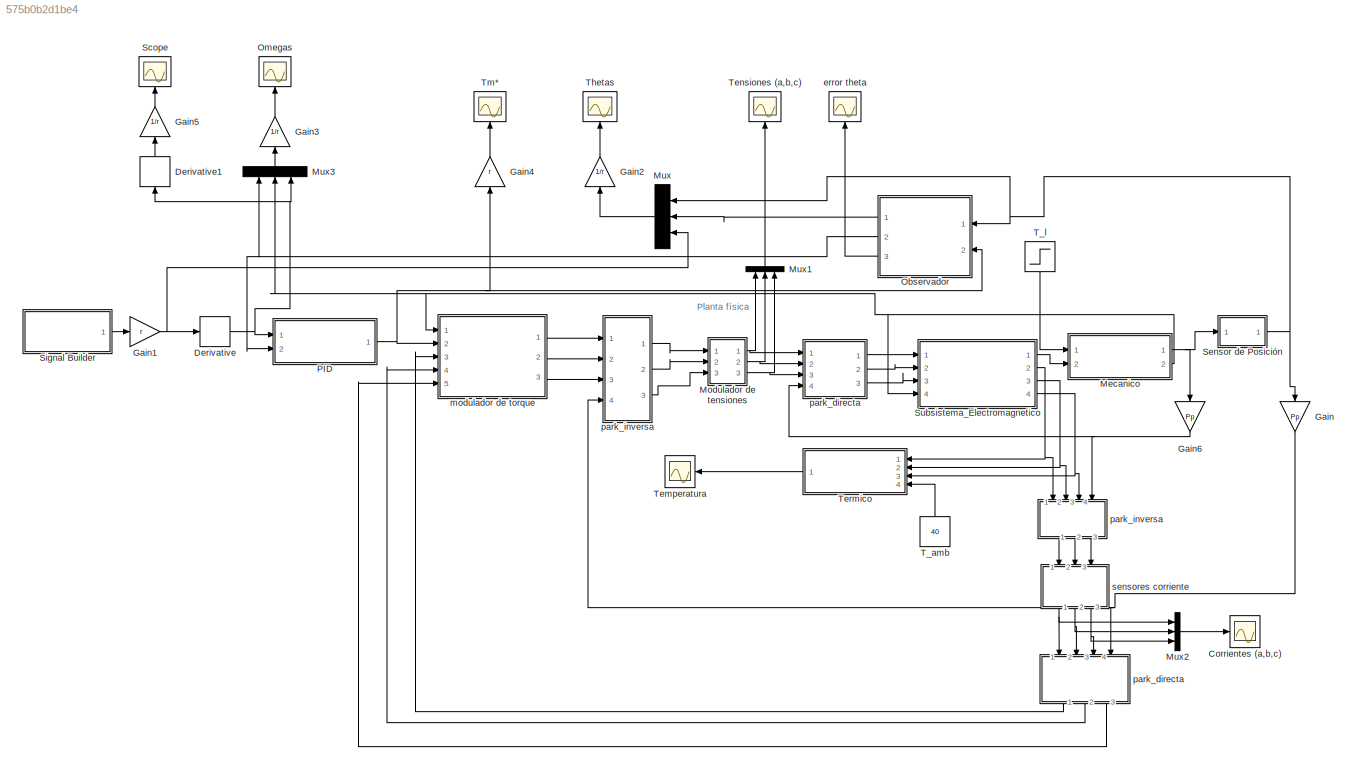
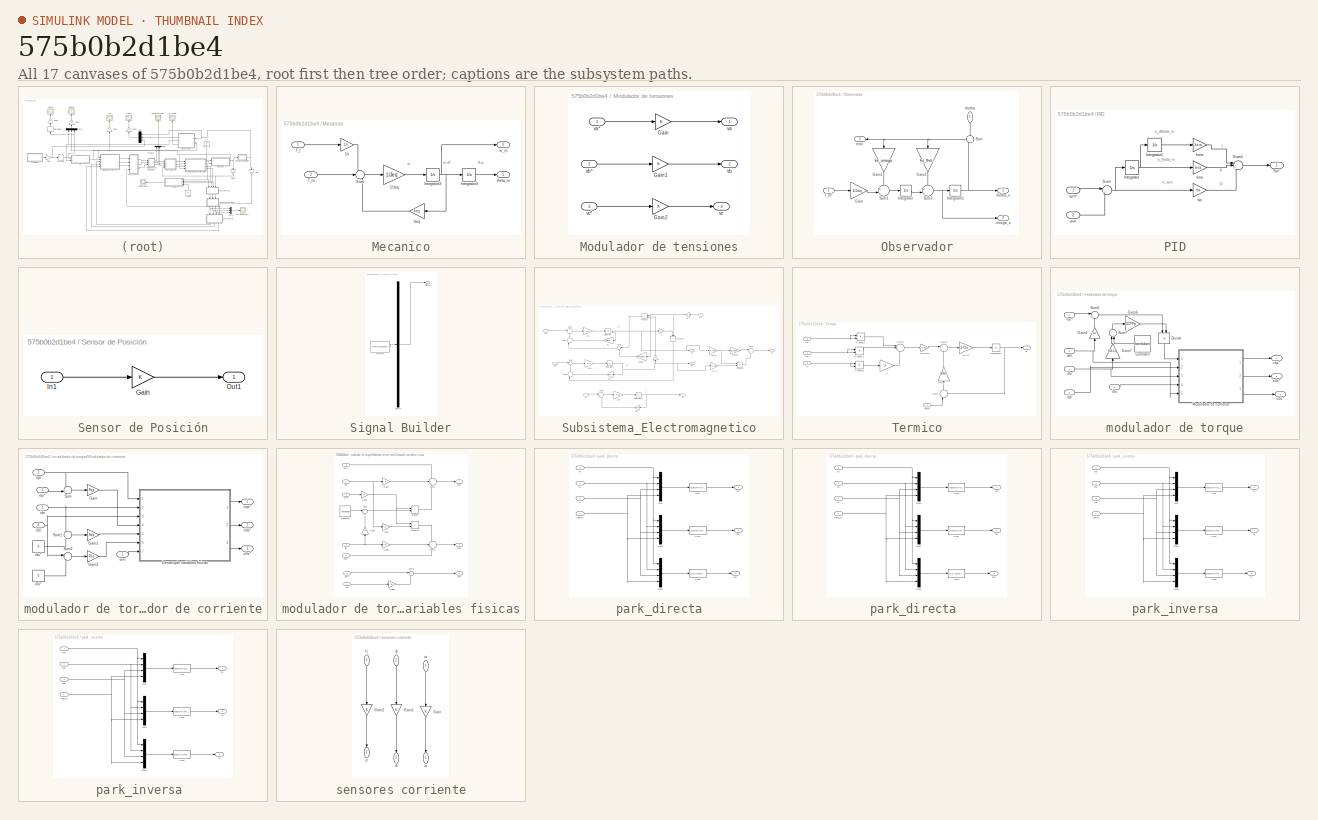
[diagram: thumbnail index - all 17 canvases of the model, root first then tree order]
MODEL slx_575b0b2d1be4
KIND model
CONFIG AbsTol = auto
CONFIG EnableMultiTasking = off
CONFIG FixedStep = auto
CONFIG MaxStep = auto
CONFIG MinStep = auto
CONFIG RelTol = 1e-3
CONFIG SampleTimeConstraint = Unconstrained
CONFIG Solver = VariableStepAuto
CONFIG SolverName = VariableStepAuto
CONFIG StartTime = 0.0
CONFIG StopTime = 20
BLOCK [Scope] Corrientes (a,b,c)
  Floating = off
  NumInputPorts = 1
  Ports = [1]
  ScopeSpecificationString = Simulink.scopes.TimeScopeBlockCfg('CurrentConfiguration', extmgr.ConfigurationSet(extmgr.Configuration('Core','General UI',true),extmgr.Configuration('Core','Source UI',true),extmgr.Configuration('Sources','WiredSimulink',true,'DataLoggingVariableName','ScopeData1','SampleTime','.0001'),extmgr.Configuration('Visuals','Time Domain',true,'SerializedDisplays',{struct('MinYLimReal','-60.46468','MaxYLi...<+1675ch>
BLOCK [Derivative] Derivative
BLOCK [Derivative] Derivative1
  NameLocation = right
BLOCK [Gain] Gain
  Gain = Pp
  NameLocation = left
BLOCK [Gain] Gain1
  Gain = r
BLOCK [Gain] Gain2
  Gain = 1/r
  NameLocation = right
BLOCK [Gain] Gain3
  Gain = 1/r
  NameLocation = right
BLOCK [Gain] Gain4
  Gain = r
  NameLocation = right
BLOCK [Gain] Gain5
  Gain = 1/r
  NameLocation = right
BLOCK [Gain] Gain6
  Gain = Pp
  NameLocation = left
BLOCK [SubSystem] Mecanico
  Ports = [2, 2]
  RequestExecContextInheritance = off
BLOCK [Gain] Mecanico/1//Jeq 
  Gain = 1/Jeq
BLOCK [Gain] Mecanico/1//r 
  Gain = 1/r
BLOCK [Integrator] Mecanico/Integrator2
  Ports = [1, 1]
BLOCK [Integrator] Mecanico/Integrator3
  Ports = [1, 1]
BLOCK [Sum] Mecanico/Sum
  Inputs = -+-
  Ports = [3, 1]
BLOCK [Inport] Mecanico/T_l
BLOCK [Inport] Mecanico/T_m
  Port = 2
BLOCK [Gain] Mecanico/beq 
  Gain = beq
BLOCK [Outport] Mecanico/theta_m
BLOCK [Outport] Mecanico/w_m
  Port = 2
BLOCK [SubSystem] Modulador de tensiones
  Ports = [3, 3]
  RequestExecContextInheritance = off
BLOCK [Gain] Modulador de tensiones/Gain
BLOCK [Gain] Modulador de tensiones/Gain1
BLOCK [Gain] Modulador de tensiones/Gain2
BLOCK [Outport] Modulador de tensiones/va
BLOCK [Inport] Modulador de tensiones/va*
BLOCK [Outport] Modulador de tensiones/vb
  Port = 2
BLOCK [Inport] Modulador de tensiones/vb*
  Port = 2
BLOCK [Outport] Modulador de tensiones/vc
  Port = 3
BLOCK [Inport] Modulador de tensiones/vc*
  Port = 3
BLOCK [Mux] Mux
  DisplayOption = bar
  Inputs = 3
  NameLocation = top
  Ports = [3, 1]
BLOCK [Mux] Mux1
  DisplayOption = bar
  Inputs = 3
  NameLocation = right
  Ports = [3, 1]
BLOCK [Mux] Mux2
  DisplayOption = bar
  Inputs = 3
  Ports = [3, 1]
BLOCK [Mux] Mux3
  DisplayOption = bar
  Inputs = 3
  NameLocation = right
  Ports = [3, 1]
BLOCK [SubSystem] Observador
  NameLocation = top
  Ports = [2, 3]
  RequestExecContextInheritance = off
BLOCK [Gain] Observador/Gain
  Gain = 1/Jeq
BLOCK [Gain] Observador/Gain1
  Gain = ke_omega
  NameLocation = left
BLOCK [Gain] Observador/Gain2
  Gain = ke_thetha
  NameLocation = left
BLOCK [Integrator] Observador/Integrator
  Ports = [1, 1]
BLOCK [Integrator] Observador/Integrator1
  Ports = [1, 1]
BLOCK [Sum] Observador/Sum
  Inputs = +||-
  NameLocation = top
  Ports = [2, 1]
BLOCK [Sum] Observador/Sum1
  Inputs = +|+||
  Ports = [2, 1]
BLOCK [Sum] Observador/Sum2
  Inputs = +|+||
  Ports = [2, 1]
BLOCK [Inport] Observador/T_m*
  Port = 2
BLOCK [Outport] Observador/error
  NameLocation = top
  Port = 3
BLOCK [Outport] Observador/omega_o
  Port = 2
BLOCK [Inport] Observador/thetha
  NameLocation = left
BLOCK [Outport] Observador/thetha_o
BLOCK [Scope] Omegas
  Floating = off
  NameLocation = top
  NumInputPorts = 1
  Ports = [1]
  ScopeSpecificationString = Simulink.scopes.TimeScopeBlockCfg('CurrentConfiguration', extmgr.ConfigurationSet(extmgr.Configuration('Core','General UI',true,'FigureColor',[0.247058823529412 0.247058823529412 0.247058823529412]),extmgr.Configuration('Core','Source UI',true),extmgr.Configuration('Sources','WiredSimulink',true,'DataLoggingVariableName','ScopeData2'),extmgr.Configuration('Visuals','Time Domain',true,'SerializedDi...<+1874ch>
BLOCK [SubSystem] PID
  Ports = [2, 1]
  RequestExecContextInheritance = off
BLOCK [Integrator] PID/Integrator
  Ports = [1, 1]
BLOCK [Integrator] PID/Integrator1
  Ports = [1, 1]
BLOCK [Sum] PID/Sum
  Inputs = |+-
  Ports = [2, 1]
BLOCK [Sum] PID/Sum1
  Inputs = |+++
  Ports = [3, 1]
BLOCK [Outport] PID/Tm*'
BLOCK [Gain] PID/ba
  Gain = ba
BLOCK [Gain] PID/ksa
  Gain = ksa
BLOCK [Gain] PID/ksia
  Gain = ksia
BLOCK [Inport] PID/wm
  Port = 2
BLOCK [Inport] PID/wm*
BLOCK [Scope] Scope
  Floating = off
  NameLocation = right
  NumInputPorts = 1
  Ports = [1]
  ScopeSpecificationString = Simulink.scopes.TimeScopeBlockCfg('CurrentConfiguration', extmgr.ConfigurationSet(extmgr.Configuration('Core','General UI',true),extmgr.Configuration('Core','Source UI',true),extmgr.Configuration('Sources','WiredSimulink',true,'DataLoggingVariableName','ScopeData1'),extmgr.Configuration('Visuals','Time Domain',true,'SerializedDisplays',{struct('MinYLimReal','-30189010158204.25','MaxYLimReal','5228...<+1646ch>
BLOCK [SubSystem] Sensor de Posición
  Ports = [1, 1]
  RequestExecContextInheritance = off
BLOCK [Gain] Sensor de Posición/Gain
BLOCK [Inport] Sensor de Posición/In1
BLOCK [Outport] Sensor de Posición/Out1
BLOCK [SubSystem] Signal Builder
  ClipboardFcn = sigbuilder_block('clipboard');
  CloseFcn = sigbuilder_block('close');
  ContinueFcn = sigbuilder_block('continue');
  CopyFcn = sigbuilder_block('copy');
  DeleteFcn = sigbuilder_block('delete');
  LoadFcn = sigbuilder_block('load');
  MaskHideContents = on
  ModelCloseFcn = sigbuilder_block('modelClose');
  NameChangeFcn = sigbuilder_block('namechange');
  OpenFcn = sigbuilder_block('open',[437.6 199.2 550.4 400 ]);
  PauseFcn = sigbuilder_block('pause');
  Ports = [0, 1]
  PreSaveFcn = sigbuilder_block('preSave');
  RequestExecContextInheritance = off
  StartFcn = sigbuilder_block('start');
  StopFcn = sigbuilder_block('stop');
  Tag = STV Subsys
BLOCK [Demux] Signal Builder/Demux
  DisplayOption = none
  Outputs = 1
  Ports = [1, 1]
  Tag = STV Demux
BLOCK [FromWorkspace] Signal Builder/FromWs
  Tag = STV FromWs
  VariableName = tuvar
BLOCK [Outport] Signal Builder/Signal 1
  Tag = STV Outport
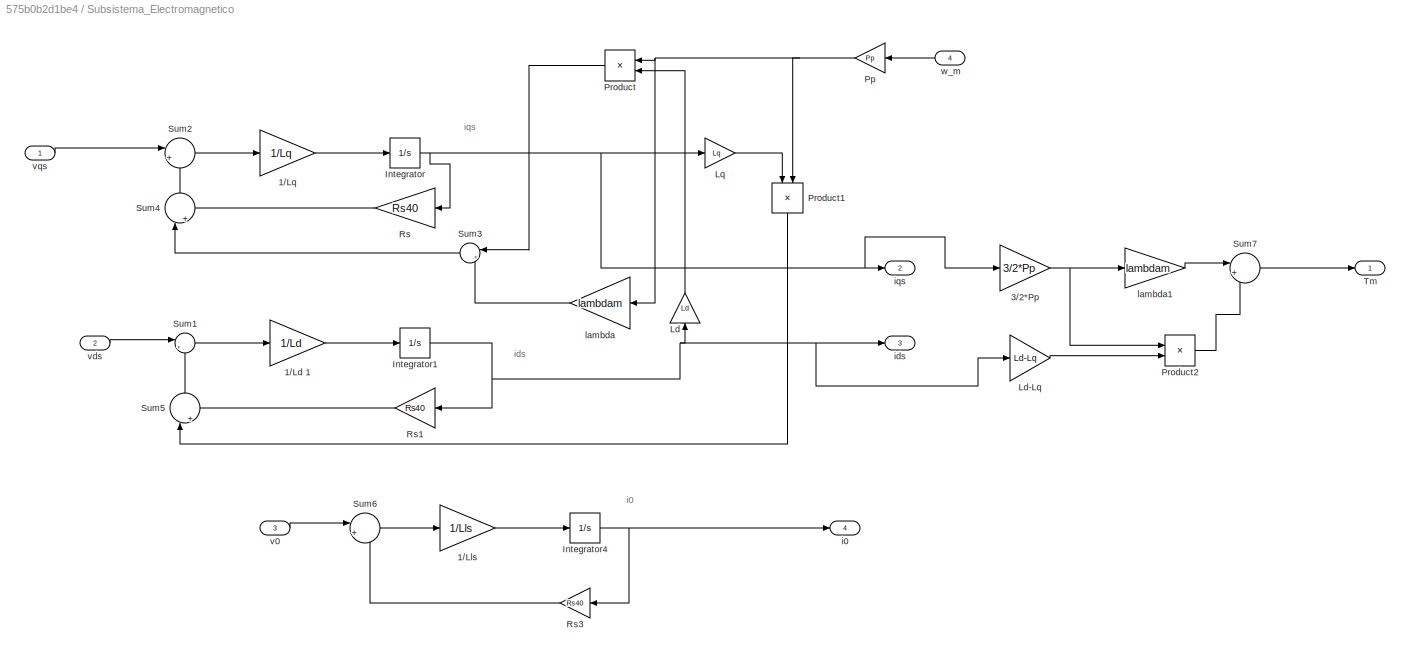
BLOCK [SubSystem] Subsistema_Electromagnetico
  Ports = [4, 4]
  RequestExecContextInheritance = off
BLOCK [Gain] Subsistema_Electromagnetico/1//Ld 1
  Gain = 1/Ld
BLOCK [Gain] Subsistema_Electromagnetico/1//Lls
  Gain = 1/Lls
BLOCK [Gain] Subsistema_Electromagnetico/1//Lq 
  Gain = 1/Lq
BLOCK [Gain] Subsistema_Electromagnetico/3//2*Pp
  Gain = 3/2*Pp
  NameLocation = top
BLOCK [Integrator] Subsistema_Electromagnetico/Integrator
  Ports = [1, 1]
BLOCK [Integrator] Subsistema_Electromagnetico/Integrator1
  Ports = [1, 1]
BLOCK [Integrator] Subsistema_Electromagnetico/Integrator4
  Ports = [1, 1]
BLOCK [Gain] Subsistema_Electromagnetico/Ld
  Gain = Ld
  NameLocation = right
BLOCK [Gain] Subsistema_Electromagnetico/Ld-Lq
  Gain = Ld-Lq
  NameLocation = top
BLOCK [Gain] Subsistema_Electromagnetico/Lq 
  Gain = Lq
BLOCK [Gain] Subsistema_Electromagnetico/Pp
  Gain = Pp
BLOCK [Product] Subsistema_Electromagnetico/Product
  Ports = [2, 1]
BLOCK [Product] Subsistema_Electromagnetico/Product1
  NameLocation = right
  Ports = [2, 1]
BLOCK [Product] Subsistema_Electromagnetico/Product2
  NameLocation = top
  Ports = [2, 1]
BLOCK [Gain] Subsistema_Electromagnetico/Rs
  Gain = Rs40
BLOCK [Gain] Subsistema_Electromagnetico/Rs1
  Gain = Rs40
BLOCK [Gain] Subsistema_Electromagnetico/Rs3
  Gain = Rs40
BLOCK [Sum] Subsistema_Electromagnetico/Sum1
  Inputs = |++
  Ports = [2, 1]
BLOCK [Sum] Subsistema_Electromagnetico/Sum2
  Inputs = |+-
  Ports = [2, 1]
BLOCK [Sum] Subsistema_Electromagnetico/Sum3
  Inputs = |++
  Ports = [2, 1]
BLOCK [Sum] Subsistema_Electromagnetico/Sum4
  Inputs = |++
  NameLocation = left
  Ports = [2, 1]
BLOCK [Sum] Subsistema_Electromagnetico/Sum5
  Inputs = |+-
  NameLocation = left
  Ports = [2, 1]
BLOCK [Sum] Subsistema_Electromagnetico/Sum6
  Inputs = |+-
  Ports = [2, 1]
BLOCK [Sum] Subsistema_Electromagnetico/Sum7
  Inputs = |++
  NameLocation = top
  Ports = [2, 1]
BLOCK [Outport] Subsistema_Electromagnetico/Tm
BLOCK [Outport] Subsistema_Electromagnetico/i0
  Port = 4
BLOCK [Outport] Subsistema_Electromagnetico/ids
  Port = 3
BLOCK [Outport] Subsistema_Electromagnetico/iqs
  Port = 2
BLOCK [Gain] Subsistema_Electromagnetico/lambda
  Gain = lambdam
BLOCK [Gain] Subsistema_Electromagnetico/lambda1
  Gain = lambdam
  NameLocation = top
BLOCK [Inport] Subsistema_Electromagnetico/v0
  Port = 3
BLOCK [Inport] Subsistema_Electromagnetico/vds
  Port = 2
BLOCK [Inport] Subsistema_Electromagnetico/vqs
BLOCK [Inport] Subsistema_Electromagnetico/w_m
  NameLocation = top
  Port = 4
BLOCK [Constant] T_amb
  Value = 40
BLOCK [Step] T_l
  After = 1.57
  NameLocation = left
  SampleTime = 0
BLOCK [Scope] Temperatura
  Floating = off
  NumInputPorts = 1
  Ports = [1]
  ScopeSpecificationString = Simulink.scopes.TimeScopeBlockCfg('CurrentConfiguration', extmgr.ConfigurationSet(extmgr.Configuration('Core','General UI',true),extmgr.Configuration('Core','Source UI',true),extmgr.Configuration('Sources','WiredSimulink',true,'DataLoggingVariableName','ScopeData6'),extmgr.Configuration('Visuals','Time Domain',true,'SerializedDisplays',{struct('MinYLimReal','-4.93535','MaxYLimReal','44.41814','YLa...<+1549ch>
BLOCK [Scope] Tensiones (a,b,c)
  Floating = off
  NameLocation = top
  NumInputPorts = 1
  Ports = [1]
  ScopeSpecificationString = Simulink.scopes.TimeScopeBlockCfg('CurrentConfiguration', extmgr.ConfigurationSet(extmgr.Configuration('Core','General UI',true),extmgr.Configuration('Core','Source UI',true),extmgr.Configuration('Sources','WiredSimulink',true,'DataLoggingVariableName','ScopeData7'),extmgr.Configuration('Visuals','Time Domain',true,'SerializedDisplays',{struct('MinYLimReal','-1940.92588','MaxYLimReal','2283.21513'...<+1668ch>
BLOCK [SubSystem] Termico
  Ports = [4, 1]
  RequestExecContextInheritance = off
BLOCK [Gain] Termico/1//Cts
  Gain = 1/Cts
BLOCK [Gain] Termico/1//Rts
  Gain = 1/Rts
  NameLocation = right
BLOCK [Gain] Termico/2 
  Gain = 2
BLOCK [Gain] Termico/3//2*Rs40 
  Gain = 3/2*Rs40
  NameLocation = top
BLOCK [Integrator] Termico/Integrator5
  Ports = [1, 1]
BLOCK [Product] Termico/Product3
  NameLocation = top
  Ports = [2, 1]
BLOCK [Product] Termico/Product4
  NameLocation = top
  Ports = [2, 1]
BLOCK [Product] Termico/Product5
  NameLocation = top
  Ports = [2, 1]
BLOCK [Sum] Termico/Sum10
  Inputs = |+-
  Ports = [2, 1]
BLOCK [Sum] Termico/Sum11
  Inputs = |+++
  NameLocation = top
  Ports = [3, 1]
BLOCK [Sum] Termico/Sum9
  Inputs = |-+
  NameLocation = right
  Ports = [2, 1]
BLOCK [Inport] Termico/Tamb
  Port = 4
BLOCK [Outport] Termico/Ts
BLOCK [Inport] Termico/i0
  Port = 3
BLOCK [Inport] Termico/ids
  Port = 2
BLOCK [Inport] Termico/iqs
BLOCK [Scope] Thetas
  Floating = off
  NameLocation = top
  NumInputPorts = 1
  Ports = [1]
  ScopeSpecificationString = Simulink.scopes.TimeScopeBlockCfg('CurrentConfiguration', extmgr.ConfigurationSet(extmgr.Configuration('Core','General UI',true),extmgr.Configuration('Core','Source UI',true),extmgr.Configuration('Sources','WiredSimulink',true,'DataLoggingVariableName','ScopeData8'),extmgr.Configuration('Visuals','Time Domain',true,'SerializedDisplays',{struct('MinYLimReal','-0.000003','MaxYLimReal','0.000012','YL...<+1939ch>
BLOCK [Scope] Tm*
  Floating = off
  NameLocation = top
  NumInputPorts = 1
  Ports = [1]
  ScopeSpecificationString = Simulink.scopes.TimeScopeBlockCfg('CurrentConfiguration', extmgr.ConfigurationSet(extmgr.Configuration('Core','General UI',true),extmgr.Configuration('Core','Source UI',true),extmgr.Configuration('Sources','WiredSimulink',true,'DataLoggingVariableName','ScopeData9'),extmgr.Configuration('Visuals','Time Domain',true,'SerializedDisplays',{struct('MinYLimReal','-1752.17219','MaxYLimReal','1755.3122',...<+1559ch>
BLOCK [Scope] error theta
  Floating = off
  NameLocation = top
  NumInputPorts = 1
  Ports = [1]
  ScopeSpecificationString = Simulink.scopes.TimeScopeBlockCfg('CurrentConfiguration', extmgr.ConfigurationSet(extmgr.Configuration('Core','General UI',true),extmgr.Configuration('Core','Source UI',true),extmgr.Configuration('Sources','WiredSimulink',true),extmgr.Configuration('Visuals','Time Domain',true,'SerializedDisplays',{struct('MinYLimReal','-0.01637','MaxYLimReal','0.01621','YLabelReal','rad','MinYLimMag','0.00000','M...<+1621ch>
BLOCK [SubSystem] modulador de torque
  Ports = [5, 3]
  RequestExecContextInheritance = off
BLOCK [Constant] modulador de torque/Constant
  NameLocation = top
  Value = lambdam
BLOCK [Product] modulador de torque/Divide
  Inputs = */
  NameLocation = left
  Ports = [2, 1]
BLOCK [Gain] modulador de torque/Gain4
  Gain = beq
  NameLocation = right
BLOCK [Gain] modulador de torque/Gain6
  Gain = 3/2*Pp
BLOCK [Gain] modulador de torque/Gain7
  Gain = Ld-Lq
  NameLocation = right
BLOCK [SubSystem] modulador de torque/Modulador de corriente
  Ports = [5, 3]
  RequestExecContextInheritance = off
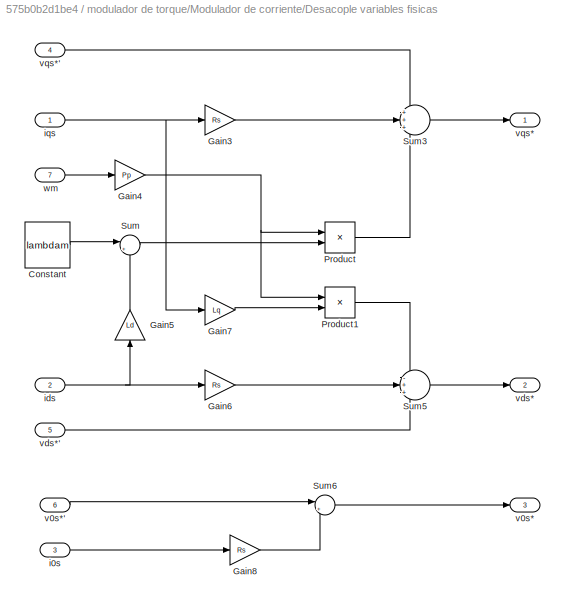
BLOCK [SubSystem] modulador de torque/Modulador de corriente/Desacople variables fisicas
  Ports = [7, 3]
  RequestExecContextInheritance = off
BLOCK [Constant] modulador de torque/Modulador de corriente/Desacople variables fisicas/Constant
  Value = lambdam
BLOCK [Gain] modulador de torque/Modulador de corriente/Desacople variables fisicas/Gain3
  Gain = Rs
BLOCK [Gain] modulador de torque/Modulador de corriente/Desacople variables fisicas/Gain4
  Gain = Pp
BLOCK [Gain] modulador de torque/Modulador de corriente/Desacople variables fisicas/Gain5
  Gain = Ld
  NameLocation = right
BLOCK [Gain] modulador de torque/Modulador de corriente/Desacople variables fisicas/Gain6
  Gain = Rs
BLOCK [Gain] modulador de torque/Modulador de corriente/Desacople variables fisicas/Gain7
  Gain = Lq
BLOCK [Gain] modulador de torque/Modulador de corriente/Desacople variables fisicas/Gain8
  Gain = Rs
BLOCK [Product] modulador de torque/Modulador de corriente/Desacople variables fisicas/Product
  Ports = [2, 1]
BLOCK [Product] modulador de torque/Modulador de corriente/Desacople variables fisicas/Product1
  Ports = [2, 1]
BLOCK [Sum] modulador de torque/Modulador de corriente/Desacople variables fisicas/Sum
  Inputs = |++
  Ports = [2, 1]
BLOCK [Sum] modulador de torque/Modulador de corriente/Desacople variables fisicas/Sum3
  Inputs = +++
  Ports = [3, 1]
BLOCK [Sum] modulador de torque/Modulador de corriente/Desacople variables fisicas/Sum5
  Inputs = -++
  Ports = [3, 1]
BLOCK [Sum] modulador de torque/Modulador de corriente/Desacople variables fisicas/Sum6
  Inputs = |++
  Ports = [2, 1]
BLOCK [Inport] modulador de torque/Modulador de corriente/Desacople variables fisicas/i0s
  Port = 3
BLOCK [Inport] modulador de torque/Modulador de corriente/Desacople variables fisicas/ids
  Port = 2
BLOCK [Inport] modulador de torque/Modulador de corriente/Desacople variables fisicas/iqs
BLOCK [Outport] modulador de torque/Modulador de corriente/Desacople variables fisicas/v0s*
  Port = 3
BLOCK [Inport] modulador de torque/Modulador de corriente/Desacople variables fisicas/v0s*'
  Port = 6
BLOCK [Outport] modulador de torque/Modulador de corriente/Desacople variables fisicas/vds*
  Port = 2
BLOCK [Inport] modulador de torque/Modulador de corriente/Desacople variables fisicas/vds*'
  Port = 5
BLOCK [Outport] modulador de torque/Modulador de corriente/Desacople variables fisicas/vqs*
BLOCK [Inport] modulador de torque/Modulador de corriente/Desacople variables fisicas/vqs*'
  Port = 4
BLOCK [Inport] modulador de torque/Modulador de corriente/Desacople variables fisicas/wm
  Port = 7
BLOCK [Gain] modulador de torque/Modulador de corriente/Gain
  Gain = Rqp
BLOCK [Gain] modulador de torque/Modulador de corriente/Gain1
  Gain = Rdp
BLOCK [Gain] modulador de torque/Modulador de corriente/Gain2
  Gain = R0p
BLOCK [Sum] modulador de torque/Modulador de corriente/Sum
  Inputs = -+|
  Ports = [2, 1]
BLOCK [Sum] modulador de torque/Modulador de corriente/Sum1
  Inputs = -||+
  Ports = [2, 1]
BLOCK [Sum] modulador de torque/Modulador de corriente/Sum2
  Inputs = |-+
  Ports = [2, 1]
BLOCK [Inport] modulador de torque/Modulador de corriente/i0s
  Port = 4
BLOCK [Constant] modulador de torque/Modulador de corriente/i0s*
  Value = 0
BLOCK [Inport] modulador de torque/Modulador de corriente/ids
  Port = 3
BLOCK [Constant] modulador de torque/Modulador de corriente/ids*
  Value = 0
BLOCK [Inport] modulador de torque/Modulador de corriente/iqs
  Port = 2
BLOCK [Inport] modulador de torque/Modulador de corriente/iqs*
BLOCK [Outport] modulador de torque/Modulador de corriente/v0s*
  Port = 3
BLOCK [Outport] modulador de torque/Modulador de corriente/vds*
  Port = 2
BLOCK [Outport] modulador de torque/Modulador de corriente/vqs*
BLOCK [Inport] modulador de torque/Modulador de corriente/wm
  Port = 5
BLOCK [Sum] modulador de torque/Sum6
  Inputs = |++
  Ports = [2, 1]
BLOCK [Sum] modulador de torque/Sum7
  Inputs = |++
  NameLocation = right
  Ports = [2, 1]
BLOCK [Inport] modulador de torque/Tm*'
  Port = 2
BLOCK [Inport] modulador de torque/i0s
  Port = 5
BLOCK [Inport] modulador de torque/ids
  Port = 4
BLOCK [Inport] modulador de torque/iqs
  Port = 3
BLOCK [Outport] modulador de torque/v0s*
  Port = 3
BLOCK [Outport] modulador de torque/vds*
  Port = 2
BLOCK [Outport] modulador de torque/vqs*
BLOCK [Inport] modulador de torque/wm
BLOCK [SubSystem] park_directa
  Ports = [4, 3]
  RequestExecContextInheritance = off
BLOCK [SubSystem] park_directa 
  NameLocation = left
  Ports = [4, 3]
  RequestExecContextInheritance = off
BLOCK [Fcn] park_directa /Fcn3
  Expr = (cos(u(4))*u(1)+cos(u(4)-2*pi/3)*u(2)+cos(u(4)+2*pi/3)*u(3))*2/3
BLOCK [Fcn] park_directa /Fcn4
  Expr = (sin(u(4))*u(1)+sin(u(4)-2*pi/3)*u(2)+sin(u(4)+2*pi/3)*u(3))*2/3
BLOCK [Fcn] park_directa /Fcn5
  Expr = (u(1)/2+u(2)/2+u(3)/2)*2/3
BLOCK [Mux] park_directa /Mux3
  DisplayOption = bar
  Ports = [4, 1]
BLOCK [Mux] park_directa /Mux4
  DisplayOption = bar
  Ports = [4, 1]
BLOCK [Mux] park_directa /Mux5
  DisplayOption = bar
  Ports = [4, 1]
BLOCK [Outport] park_directa /f0s
  Port = 3
BLOCK [Inport] park_directa /fa 
BLOCK [Inport] park_directa /fb 
  Port = 2
BLOCK [Inport] park_directa /fc 
  Port = 3
BLOCK [Outport] park_directa /fds
  Port = 2
BLOCK [Outport] park_directa /fqs
BLOCK [Inport] park_directa /theta_r1
  Port = 4
BLOCK [Fcn] park_directa/Fcn
  Expr = (cos(u(4))*u(1)+cos(u(4)-2*pi/3)*u(2)+cos(u(4)+2*pi/3)*u(3))*2/3
BLOCK [Fcn] park_directa/Fcn1
  Expr = (sin(u(4))*u(1)+sin(u(4)-2*pi/3)*u(2)+sin(u(4)+2*pi/3)*u(3))*2/3
BLOCK [Fcn] park_directa/Fcn2
  Expr = (u(1)/2+u(2)/2+u(3)/2)*2/3
BLOCK [Mux] park_directa/Mux
  DisplayOption = bar
  Ports = [4, 1]
BLOCK [Mux] park_directa/Mux1
  DisplayOption = bar
  Ports = [4, 1]
BLOCK [Mux] park_directa/Mux2
  DisplayOption = bar
  Ports = [4, 1]
BLOCK [Outport] park_directa/f0s
  Port = 3
BLOCK [Inport] park_directa/fa 
BLOCK [Inport] park_directa/fb 
  Port = 2
BLOCK [Inport] park_directa/fc 
  Port = 3
BLOCK [Outport] park_directa/fds
  Port = 2
BLOCK [Outport] park_directa/fqs
BLOCK [Inport] park_directa/theta_r
  Port = 4
BLOCK [SubSystem] park_inversa
  Ports = [4, 3]
  RequestExecContextInheritance = off
BLOCK [SubSystem] park_inversa 
  NameLocation = left
  Ports = [4, 3]
  RequestExecContextInheritance = off
BLOCK [Fcn] park_inversa /Fcn
  Expr = cos(u(4))*u(1)+sin(u(4))*u(2)+u(3)
BLOCK [Fcn] park_inversa /Fcn1
  Expr = cos(u(4)-2*pi/3)*u(1)+sin(u(4)-2*pi/3)*u(2)+u(3)
BLOCK [Fcn] park_inversa /Fcn2
  Expr = cos(u(4)+2*pi/3)*u(1)+sin(u(4)+2*pi/3)*u(2)+u(3)
BLOCK [Mux] park_inversa /Mux
  DisplayOption = bar
  Ports = [4, 1]
BLOCK [Mux] park_inversa /Mux1
  DisplayOption = bar
  Ports = [4, 1]
BLOCK [Mux] park_inversa /Mux2
  DisplayOption = bar
  Ports = [4, 1]
BLOCK [Inport] park_inversa /f0s
  Port = 3
BLOCK [Outport] park_inversa /fa
BLOCK [Outport] park_inversa /fb
  Port = 2
BLOCK [Outport] park_inversa /fc
  Port = 3
BLOCK [Inport] park_inversa /fds
  Port = 2
BLOCK [Inport] park_inversa /fqs
BLOCK [Inport] park_inversa /theta_r
  Port = 4
BLOCK [Fcn] park_inversa/Fcn
  Expr = cos(u(4))*u(1)+sin(u(4))*u(2)+u(3)
BLOCK [Fcn] park_inversa/Fcn1
  Expr = cos(u(4)-2*pi/3)*u(1)+sin(u(4)-2*pi/3)*u(2)+u(3)
BLOCK [Fcn] park_inversa/Fcn2
  Expr = cos(u(4)+2*pi/3)*u(1)+sin(u(4)+2*pi/3)*u(2)+u(3)
BLOCK [Mux] park_inversa/Mux
  DisplayOption = bar
  Ports = [4, 1]
BLOCK [Mux] park_inversa/Mux1
  DisplayOption = bar
  Ports = [4, 1]
BLOCK [Mux] park_inversa/Mux2
  DisplayOption = bar
  Ports = [4, 1]
BLOCK [Inport] park_inversa/f0s
  Port = 3
BLOCK [Outport] park_inversa/fa
BLOCK [Outport] park_inversa/fb
  Port = 2
BLOCK [Outport] park_inversa/fc
  Port = 3
BLOCK [Inport] park_inversa/fds
  Port = 2
BLOCK [Inport] park_inversa/fqs
BLOCK [Inport] park_inversa/theta_r
  Port = 4
BLOCK [SubSystem] sensores corriente
  NameLocation = left
  Ports = [3, 3]
  RequestExecContextInheritance = off
BLOCK [Gain] sensores corriente/Gain
  NameLocation = left
BLOCK [Gain] sensores corriente/Gain1
  NameLocation = left
BLOCK [Gain] sensores corriente/Gain2
  NameLocation = left
BLOCK [Inport] sensores corriente/ia
  NameLocation = left
BLOCK [Outport] sensores corriente/ia 
  NameLocation = left
BLOCK [Inport] sensores corriente/ib
  NameLocation = left
  Port = 2
BLOCK [Outport] sensores corriente/ib 
  NameLocation = left
  Port = 2
BLOCK [Inport] sensores corriente/ic
  NameLocation = left
  Port = 3
BLOCK [Outport] sensores corriente/ic 
  NameLocation = left
  Port = 3
ANNOTATION (root): Planta física
ANNOTATION Mecanico: w'
ANNOTATION Mecanico: w=θ'
ANNOTATION Mecanico: θ=y
ANNOTATION PID: D
ANNOTATION PID: I
ANNOTATION PID: P
ANNOTATION PID: e_dtheta_m
ANNOTATION PID: e_theta_m
ANNOTATION PID: e_wm
ANNOTATION Subsistema_Electromagnetico: i0
ANNOTATION Subsistema_Electromagnetico: ids
ANNOTATION Subsistema_Electromagnetico: iqs
LINE Derivative1:1 -> Gain5:1
NET Derivative:1 -> Derivative1:1, Mux3:3, PID:1
NET Gain1:1 -> Derivative:1, Mux:3
LINE Gain2:1 -> Thetas:1
LINE Gain3:1 -> Omegas:1
LINE Gain4:1 -> Tm*:1
LINE Gain5:1 -> Scope:1
NET Gain6:1 -> park_directa:4, park_inversa :4
NET Gain:1 -> park_directa :4, park_inversa:4
LINE Mecanico/1//Jeq :1 -> Mecanico/Integrator2:1
LINE Mecanico/1//r :1 -> Mecanico/Sum:1
NET Mecanico/Integrator2:1 -> Mecanico/Integrator3:1, Mecanico/beq :1, Mecanico/w_m:1
LINE Mecanico/Integrator3:1 -> Mecanico/theta_m:1
LINE Mecanico/Sum:1 -> Mecanico/1//Jeq :1
LINE Mecanico/T_l:1 -> Mecanico/1//r :1
LINE Mecanico/T_m:1 -> Mecanico/Sum:2
LINE Mecanico/beq :1 -> Mecanico/Sum:3
NET Mecanico:1 -> Gain6:1, Sensor de Posición:1
NET Mecanico:2 -> Mux3:2, Subsistema_Electromagnetico:4, modulador de torque:1
LINE Modulador de tensiones/Gain1:1 -> Modulador de tensiones/vb:1
LINE Modulador de tensiones/Gain2:1 -> Modulador de tensiones/vc:1
LINE Modulador de tensiones/Gain:1 -> Modulador de tensiones/va:1
LINE Modulador de tensiones/va*:1 -> Modulador de tensiones/Gain:1
LINE Modulador de tensiones/vb*:1 -> Modulador de tensiones/Gain1:1
LINE Modulador de tensiones/vc*:1 -> Modulador de tensiones/Gain2:1
NET Modulador de tensiones:1 -> Mux1:1, park_directa:1
NET Modulador de tensiones:2 -> Mux1:2, park_directa:2
NET Modulador de tensiones:3 -> Mux1:3, park_directa:3
LINE Mux1:1 -> Tensiones (a,b,c):1
LINE Mux2:1 -> Corrientes (a,b,c):1
LINE Mux3:1 -> Gain3:1
LINE Mux:1 -> Gain2:1
LINE Observador/Gain1:1 -> Observador/Sum1:1
LINE Observador/Gain2:1 -> Observador/Sum2:1
LINE Observador/Gain:1 -> Observador/Sum1:2
NET Observador/Integrator1:1 -> Observador/Sum:2, Observador/thetha_o:1
LINE Observador/Integrator:1 -> Observador/Sum2:2
LINE Observador/Sum1:1 -> Observador/Integrator:1
NET Observador/Sum2:1 -> Observador/Integrator1:1, Observador/omega_o:1
NET Observador/Sum:1 -> Observador/Gain1:1, Observador/Gain2:1, Observador/error:1
LINE Observador/T_m*:1 -> Observador/Gain:1
LINE Observador/thetha:1 -> Observador/Sum:1
LINE Observador:1 -> Mux:2
NET Observador:2 -> Mux3:1, PID:2
LINE Observador:3 -> error theta:1
LINE PID/Integrator1:1 -> PID/ksia:1
NET PID/Integrator:1 -> PID/Integrator1:1, PID/ksa:1
LINE PID/Sum1:1 -> PID/Tm*':1
NET PID/Sum:1 -> PID/Integrator:1, PID/ba:1
LINE PID/ba:1 -> PID/Sum1:3
LINE PID/ksa:1 -> PID/Sum1:2
LINE PID/ksia:1 -> PID/Sum1:1
LINE PID/wm*:1 -> PID/Sum:1
LINE PID/wm:1 -> PID/Sum:2
NET PID:1 -> Gain4:1, Observador:2, modulador de torque:2
LINE Sensor de Posición/Gain:1 -> Sensor de Posición/Out1:1
LINE Sensor de Posición/In1:1 -> Sensor de Posición/Gain:1
NET Sensor de Posición:1 -> Gain:1, Mux:1, Observador:1
LINE Signal Builder:1 -> Gain1:1
LINE Subsistema_Electromagnetico/1//Ld 1:1 -> Subsistema_Electromagnetico/Integrator1:1
LINE Subsistema_Electromagnetico/1//Lls:1 -> Subsistema_Electromagnetico/Integrator4:1
LINE Subsistema_Electromagnetico/1//Lq :1 -> Subsistema_Electromagnetico/Integrator:1
NET Subsistema_Electromagnetico/3//2*Pp:1 -> Subsistema_Electromagnetico/Product2:1, Subsistema_Electromagnetico/lambda1:1
NET Subsistema_Electromagnetico/Integrator1:1 -> Subsistema_Electromagnetico/Ld-Lq:1, Subsistema_Electromagnetico/Ld:1, Subsistema_Electromagnetico/Rs1:1, Subsistema_Electromagnetico/ids:1
NET Subsistema_Electromagnetico/Integrator4:1 -> Subsistema_Electromagnetico/Rs3:1, Subsistema_Electromagnetico/i0:1
NET Subsistema_Electromagnetico/Integrator:1 -> Subsistema_Electromagnetico/3//2*Pp:1, Subsistema_Electromagnetico/Lq :1, Subsistema_Electromagnetico/Rs:1, Subsistema_Electromagnetico/iqs:1
LINE Subsistema_Electromagnetico/Ld-Lq:1 -> Subsistema_Electromagnetico/Product2:2
LINE Subsistema_Electromagnetico/Ld:1 -> Subsistema_Electromagnetico/Product:2
LINE Subsistema_Electromagnetico/Lq :1 -> Subsistema_Electromagnetico/Product1:1
NET Subsistema_Electromagnetico/Pp:1 -> Subsistema_Electromagnetico/Product1:2, Subsistema_Electromagnetico/Product:1, Subsistema_Electromagnetico/lambda:1
LINE Subsistema_Electromagnetico/Product1:1 -> Subsistema_Electromagnetico/Sum5:1
LINE Subsistema_Electromagnetico/Product2:1 -> Subsistema_Electromagnetico/Sum7:2
LINE Subsistema_Electromagnetico/Product:1 -> Subsistema_Electromagnetico/Sum3:1
LINE Subsistema_Electromagnetico/Rs1:1 -> Subsistema_Electromagnetico/Sum5:2
LINE Subsistema_Electromagnetico/Rs3:1 -> Subsistema_Electromagnetico/Sum6:2
LINE Subsistema_Electromagnetico/Rs:1 -> Subsistema_Electromagnetico/Sum4:2
LINE Subsistema_Electromagnetico/Sum1:1 -> Subsistema_Electromagnetico/1//Ld 1:1
LINE Subsistema_Electromagnetico/Sum2:1 -> Subsistema_Electromagnetico/1//Lq :1
LINE Subsistema_Electromagnetico/Sum3:1 -> Subsistema_Electromagnetico/Sum4:1
LINE Subsistema_Electromagnetico/Sum4:1 -> Subsistema_Electromagnetico/Sum2:2
LINE Subsistema_Electromagnetico/Sum5:1 -> Subsistema_Electromagnetico/Sum1:2
LINE Subsistema_Electromagnetico/Sum6:1 -> Subsistema_Electromagnetico/1//Lls:1
LINE Subsistema_Electromagnetico/Sum7:1 -> Subsistema_Electromagnetico/Tm:1
LINE Subsistema_Electromagnetico/lambda1:1 -> Subsistema_Electromagnetico/Sum7:1
LINE Subsistema_Electromagnetico/lambda:1 -> Subsistema_Electromagnetico/Sum3:2
LINE Subsistema_Electromagnetico/v0:1 -> Subsistema_Electromagnetico/Sum6:1
LINE Subsistema_Electromagnetico/vds:1 -> Subsistema_Electromagnetico/Sum1:1
LINE Subsistema_Electromagnetico/vqs:1 -> Subsistema_Electromagnetico/Sum2:1
LINE Subsistema_Electromagnetico/w_m:1 -> Subsistema_Electromagnetico/Pp:1
LINE Subsistema_Electromagnetico:1 -> Mecanico:2
NET Subsistema_Electromagnetico:2 -> Termico:1, park_inversa :1
NET Subsistema_Electromagnetico:3 -> Termico:2, park_inversa :2
NET Subsistema_Electromagnetico:4 -> Termico:3, park_inversa :3
LINE T_amb:1 -> Termico:4
LINE T_l:1 -> Mecanico:1
LINE Termico/1//Cts:1 -> Termico/Integrator5:1
LINE Termico/1//Rts:1 -> Termico/Sum10:2
LINE Termico/2 :1 -> Termico/Sum11:3
LINE Termico/3//2*Rs40 :1 -> Termico/Sum10:1
NET Termico/Integrator5:1 -> Termico/Sum9:2, Termico/Ts:1
LINE Termico/Product3:1 -> Termico/Sum11:2
LINE Termico/Product4:1 -> Termico/Sum11:1
LINE Termico/Product5:1 -> Termico/2 :1
LINE Termico/Sum10:1 -> Termico/1//Cts:1
LINE Termico/Sum11:1 -> Termico/3//2*Rs40 :1
LINE Termico/Sum9:1 -> Termico/1//Rts:1
LINE Termico/Tamb:1 -> Termico/Sum9:1
NET Termico/i0:1 -> Termico/Product5:1, Termico/Product5:2
NET Termico/ids:1 -> Termico/Product3:1, Termico/Product3:2
NET Termico/iqs:1 -> Termico/Product4:1, Termico/Product4:2
LINE Termico:1 -> Temperatura:1
LINE modulador de torque/Constant:1 -> modulador de torque/Sum7:2
LINE modulador de torque/Divide:1 -> modulador de torque/Modulador de corriente:1
LINE modulador de torque/Gain4:1 -> modulador de torque/Sum6:2
LINE modulador de torque/Gain6:1 -> modulador de torque/Divide:2
LINE modulador de torque/Gain7:1 -> modulador de torque/Sum7:1
LINE modulador de torque/Modulador de corriente/Desacople variables fisicas/Constant:1 -> modulador de torque/Modulador de corriente/Desacople variables fisicas/Sum:1
LINE modulador de torque/Modulador de corriente/Desacople variables fisicas/Gain3:1 -> modulador de torque/Modulador de corriente/Desacople variables fisicas/Sum3:2
NET modulador de torque/Modulador de corriente/Desacople variables fisicas/Gain4:1 -> modulador de torque/Modulador de corriente/Desacople variables fisicas/Product1:1, modulador de torque/Modulador de corriente/Desacople variables fisicas/Product:1
LINE modulador de torque/Modulador de corriente/Desacople variables fisicas/Gain5:1 -> modulador de torque/Modulador de corriente/Desacople variables fisicas/Sum:2
LINE modulador de torque/Modulador de corriente/Desacople variables fisicas/Gain6:1 -> modulador de torque/Modulador de corriente/Desacople variables fisicas/Sum5:2
LINE modulador de torque/Modulador de corriente/Desacople variables fisicas/Gain7:1 -> modulador de torque/Modulador de corriente/Desacople variables fisicas/Product1:2
LINE modulador de torque/Modulador de corriente/Desacople variables fisicas/Gain8:1 -> modulador de torque/Modulador de corriente/Desacople variables fisicas/Sum6:2
LINE modulador de torque/Modulador de corriente/Desacople variables fisicas/Product1:1 -> modulador de torque/Modulador de corriente/Desacople variables fisicas/Sum5:1
LINE modulador de torque/Modulador de corriente/Desacople variables fisicas/Product:1 -> modulador de torque/Modulador de corriente/Desacople variables fisicas/Sum3:3
LINE modulador de torque/Modulador de corriente/Desacople variables fisicas/Sum3:1 -> modulador de torque/Modulador de corriente/Desacople variables fisicas/vqs*:1
LINE modulador de torque/Modulador de corriente/Desacople variables fisicas/Sum5:1 -> modulador de torque/Modulador de corriente/Desacople variables fisicas/vds*:1
LINE modulador de torque/Modulador de corriente/Desacople variables fisicas/Sum6:1 -> modulador de torque/Modulador de corriente/Desacople variables fisicas/v0s*:1
LINE modulador de torque/Modulador de corriente/Desacople variables fisicas/Sum:1 -> modulador de torque/Modulador de corriente/Desacople variables fisicas/Product:2
LINE modulador de torque/Modulador de corriente/Desacople variables fisicas/i0s:1 -> modulador de torque/Modulador de corriente/Desacople variables fisicas/Gain8:1
NET modulador de torque/Modulador de corriente/Desacople variables fisicas/ids:1 -> modulador de torque/Modulador de corriente/Desacople variables fisicas/Gain5:1, modulador de torque/Modulador de corriente/Desacople variables fisicas/Gain6:1
NET modulador de torque/Modulador de corriente/Desacople variables fisicas/iqs:1 -> modulador de torque/Modulador de corriente/Desacople variables fisicas/Gain3:1, modulador de torque/Modulador de corriente/Desacople variables fisicas/Gain7:1
LINE modulador de torque/Modulador de corriente/Desacople variables fisicas/v0s*':1 -> modulador de torque/Modulador de corriente/Desacople variables fisicas/Sum6:1
LINE modulador de torque/Modulador de corriente/Desacople variables fisicas/vds*':1 -> modulador de torque/Modulador de corriente/Desacople variables fisicas/Sum5:3
LINE modulador de torque/Modulador de corriente/Desacople variables fisicas/vqs*':1 -> modulador de torque/Modulador de corriente/Desacople variables fisicas/Sum3:1
LINE modulador de torque/Modulador de corriente/Desacople variables fisicas/wm:1 -> modulador de torque/Modulador de corriente/Desacople variables fisicas/Gain4:1
LINE modulador de torque/Modulador de corriente/Desacople variables fisicas:1 -> modulador de torque/Modulador de corriente/vqs*:1
LINE modulador de torque/Modulador de corriente/Desacople variables fisicas:2 -> modulador de torque/Modulador de corriente/vds*:1
LINE modulador de torque/Modulador de corriente/Desacople variables fisicas:3 -> modulador de torque/Modulador de corriente/v0s*:1
LINE modulador de torque/Modulador de corriente/Gain1:1 -> modulador de torque/Modulador de corriente/Desacople variables fisicas:5
LINE modulador de torque/Modulador de corriente/Gain2:1 -> modulador de torque/Modulador de corriente/Desacople variables fisicas:6
LINE modulador de torque/Modulador de corriente/Gain:1 -> modulador de torque/Modulador de corriente/Desacople variables fisicas:4
LINE modulador de torque/Modulador de corriente/Sum1:1 -> modulador de torque/Modulador de corriente/Gain1:1
LINE modulador de torque/Modulador de corriente/Sum2:1 -> modulador de torque/Modulador de corriente/Gain2:1
LINE modulador de torque/Modulador de corriente/Sum:1 -> modulador de torque/Modulador de corriente/Gain:1
LINE modulador de torque/Modulador de corriente/i0s*:1 -> modulador de torque/Modulador de corriente/Sum2:2
NET modulador de torque/Modulador de corriente/i0s:1 -> modulador de torque/Modulador de corriente/Desacople variables fisicas:3, modulador de torque/Modulador de corriente/Sum2:1
LINE modulador de torque/Modulador de corriente/ids*:1 -> modulador de torque/Modulador de corriente/Sum1:2
NET modulador de torque/Modulador de corriente/ids:1 -> modulador de torque/Modulador de corriente/Desacople variables fisicas:2, modulador de torque/Modulador de corriente/Sum1:1
LINE modulador de torque/Modulador de corriente/iqs*:1 -> modulador de torque/Modulador de corriente/Sum:2
NET modulador de torque/Modulador de corriente/iqs:1 -> modulador de torque/Modulador de corriente/Desacople variables fisicas:1, modulador de torque/Modulador de corriente/Sum:1
LINE modulador de torque/Modulador de corriente/wm:1 -> modulador de torque/Modulador de corriente/Desacople variables fisicas:7
LINE modulador de torque/Modulador de corriente:1 -> modulador de torque/vqs*:1
LINE modulador de torque/Modulador de corriente:2 -> modulador de torque/vds*:1
LINE modulador de torque/Modulador de corriente:3 -> modulador de torque/v0s*:1
LINE modulador de torque/Sum6:1 -> modulador de torque/Divide:1
LINE modulador de torque/Sum7:1 -> modulador de torque/Gain6:1
LINE modulador de torque/Tm*':1 -> modulador de torque/Sum6:1
LINE modulador de torque/i0s:1 -> modulador de torque/Modulador de corriente:4
NET modulador de torque/ids:1 -> modulador de torque/Gain7:1, modulador de torque/Modulador de corriente:3
LINE modulador de torque/iqs:1 -> modulador de torque/Modulador de corriente:2
NET modulador de torque/wm:1 -> modulador de torque/Gain4:1, modulador de torque/Modulador de corriente:5
LINE modulador de torque:1 -> park_inversa:1
LINE modulador de torque:2 -> park_inversa:2
LINE modulador de torque:3 -> park_inversa:3
LINE park_directa /Fcn3:1 -> park_directa /fqs:1
LINE park_directa /Fcn4:1 -> park_directa /fds:1
LINE park_directa /Fcn5:1 -> park_directa /f0s:1
LINE park_directa /Mux3:1 -> park_directa /Fcn3:1
LINE park_directa /Mux4:1 -> park_directa /Fcn4:1
LINE park_directa /Mux5:1 -> park_directa /Fcn5:1
NET park_directa /fa :1 -> park_directa /Mux3:1, park_directa /Mux4:1, park_directa /Mux5:1
NET park_directa /fb :1 -> park_directa /Mux3:2, park_directa /Mux4:2, park_directa /Mux5:2
NET park_directa /fc :1 -> park_directa /Mux3:3, park_directa /Mux4:3, park_directa /Mux5:3
NET park_directa /theta_r1:1 -> park_directa /Mux3:4, park_directa /Mux4:4, park_directa /Mux5:4
LINE park_directa :1 -> modulador de torque:3
LINE park_directa :2 -> modulador de torque:4
LINE park_directa :3 -> modulador de torque:5
LINE park_directa/Fcn1:1 -> park_directa/fds:1
LINE park_directa/Fcn2:1 -> park_directa/f0s:1
LINE park_directa/Fcn:1 -> park_directa/fqs:1
LINE park_directa/Mux1:1 -> park_directa/Fcn1:1
LINE park_directa/Mux2:1 -> park_directa/Fcn2:1
LINE park_directa/Mux:1 -> park_directa/Fcn:1
NET park_directa/fa :1 -> park_directa/Mux1:1, park_directa/Mux2:1, park_directa/Mux:1
NET park_directa/fb :1 -> park_directa/Mux1:2, park_directa/Mux2:2, park_directa/Mux:2
NET park_directa/fc :1 -> park_directa/Mux1:3, park_directa/Mux2:3, park_directa/Mux:3
NET park_directa/theta_r:1 -> park_directa/Mux1:4, park_directa/Mux2:4, park_directa/Mux:4
LINE park_directa:1 -> Subsistema_Electromagnetico:1
LINE park_directa:2 -> Subsistema_Electromagnetico:2
LINE park_directa:3 -> Subsistema_Electromagnetico:3
LINE park_inversa /Fcn1:1 -> park_inversa /fb:1
LINE park_inversa /Fcn2:1 -> park_inversa /fc:1
LINE park_inversa /Fcn:1 -> park_inversa /fa:1
LINE park_inversa /Mux1:1 -> park_inversa /Fcn1:1
LINE park_inversa /Mux2:1 -> park_inversa /Fcn2:1
LINE park_inversa /Mux:1 -> park_inversa /Fcn:1
NET park_inversa /f0s:1 -> park_inversa /Mux1:3, park_inversa /Mux2:3, park_inversa /Mux:3
NET park_inversa /fds:1 -> park_inversa /Mux1:2, park_inversa /Mux2:2, park_inversa /Mux:2
NET park_inversa /fqs:1 -> park_inversa /Mux1:1, park_inversa /Mux2:1, park_inversa /Mux:1
NET park_inversa /theta_r:1 -> park_inversa /Mux1:4, park_inversa /Mux2:4, park_inversa /Mux:4
LINE park_inversa :1 -> sensores corriente:1
LINE park_inversa :2 -> sensores corriente:2
LINE park_inversa :3 -> sensores corriente:3
LINE park_inversa/Fcn1:1 -> park_inversa/fb:1
LINE park_inversa/Fcn2:1 -> park_inversa/fc:1
LINE park_inversa/Fcn:1 -> park_inversa/fa:1
LINE park_inversa/Mux1:1 -> park_inversa/Fcn1:1
LINE park_inversa/Mux2:1 -> park_inversa/Fcn2:1
LINE park_inversa/Mux:1 -> park_inversa/Fcn:1
NET park_inversa/f0s:1 -> park_inversa/Mux1:3, park_inversa/Mux2:3, park_inversa/Mux:3
NET park_inversa/fds:1 -> park_inversa/Mux1:2, park_inversa/Mux2:2, park_inversa/Mux:2
NET park_inversa/fqs:1 -> park_inversa/Mux1:1, park_inversa/Mux2:1, park_inversa/Mux:1
NET park_inversa/theta_r:1 -> park_inversa/Mux1:4, park_inversa/Mux2:4, park_inversa/Mux:4
LINE park_inversa:1 -> Modulador de tensiones:1
LINE park_inversa:2 -> Modulador de tensiones:2
LINE park_inversa:3 -> Modulador de tensiones:3
LINE sensores corriente/Gain1:1 -> sensores corriente/ib :1
LINE sensores corriente/Gain2:1 -> sensores corriente/ic :1
LINE sensores corriente/Gain:1 -> sensores corriente/ia :1
LINE sensores corriente/ia:1 -> sensores corriente/Gain:1
LINE sensores corriente/ib:1 -> sensores corriente/Gain1:1
LINE sensores corriente/ic:1 -> sensores corriente/Gain2:1
NET sensores corriente:1 -> Mux2:1, park_directa :1
NET sensores corriente:2 -> Mux2:2, park_directa :2
NET sensores corriente:3 -> Mux2:3, park_directa :3
note: NET lines group one-source signal fan-out (src -> all destinations, sorted); 1:1 wires keep LINE
